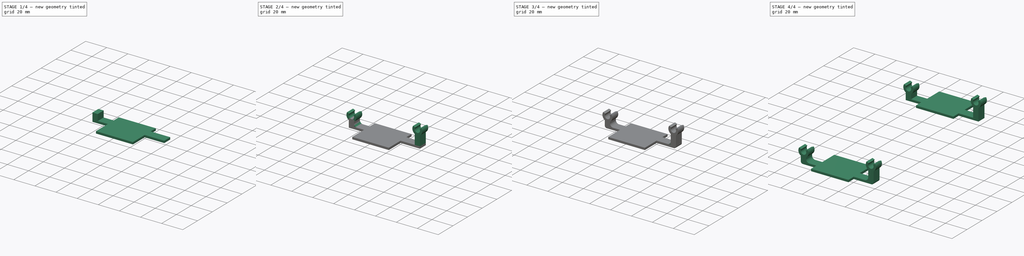
[diagram: build sequence overview — one tinted view per stage of 4, left to right]
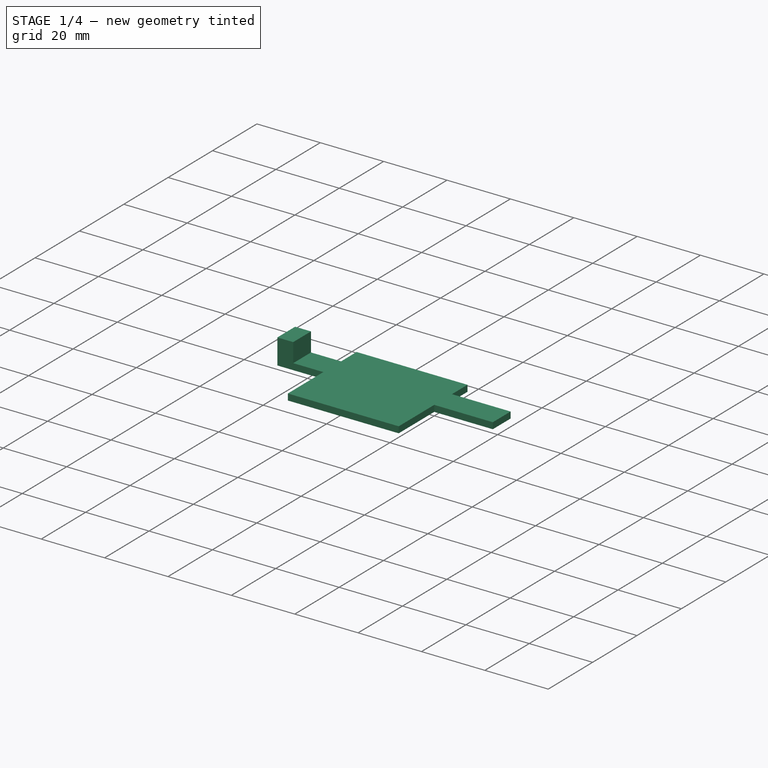
[diagram: stage 1 of 4 — iso view after this stage's code; geometry added in this stage tinted green]
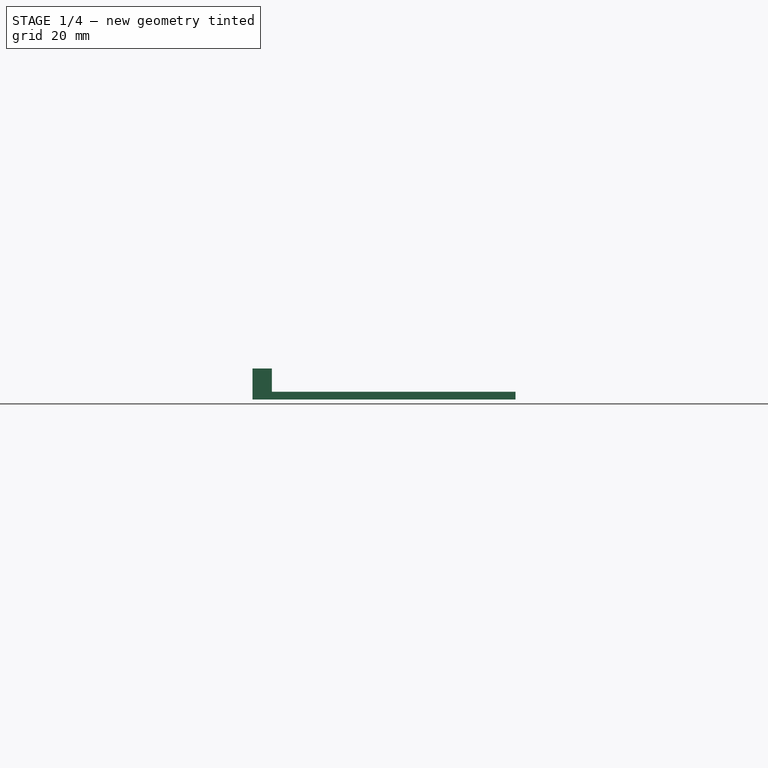
[diagram: stage 1 of 4 — front view after this stage's code; geometry added in this stage tinted green]
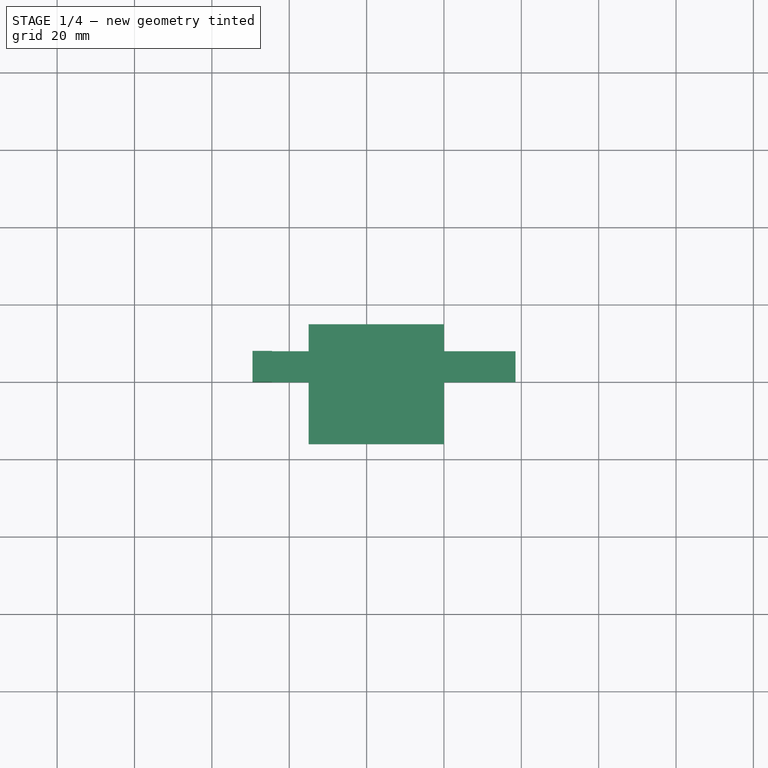
[diagram: stage 1 of 4 — top view after this stage's code; geometry added in this stage tinted green]
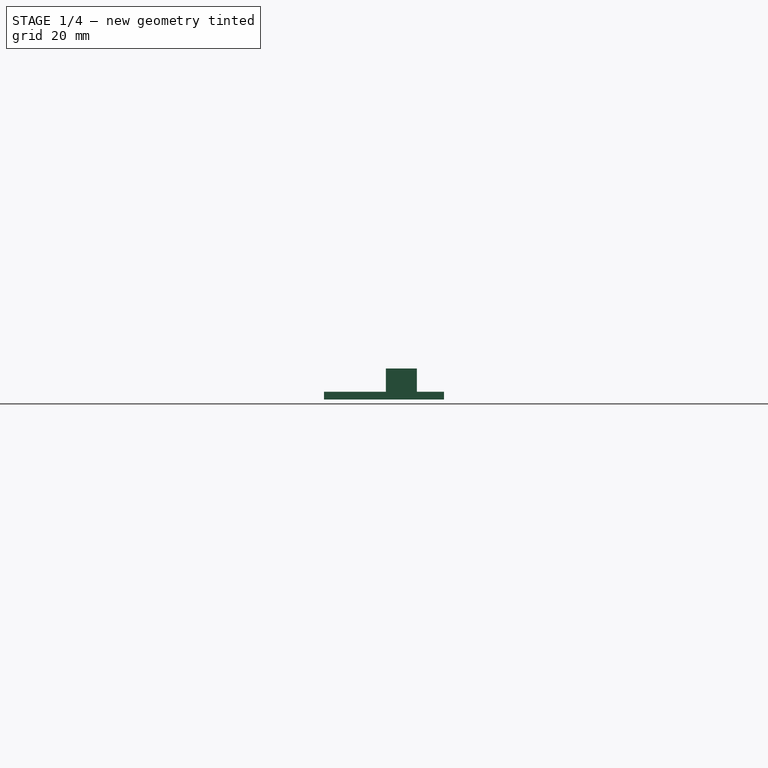
[diagram: stage 1 of 4 — right view after this stage's code; geometry added in this stage tinted green]
FCSTD DOCUMENT  (FreeCAD 0.21R33675 (Git))
Label: copter_left_cover
License: All rights reserved
LicenseURL: http://en.wikipedia.org/wiki/All_rights_reserved
objects: Sketcher::SketchObject×4, PartDesign::Pad×4, Part::Fillet×4, Part::Mirroring×2, PartDesign::Body×1
note: 19 computed .brp shape members not serialized (recipe doc carries the construction recipe); baked Part::Feature solids carry a one-line shape summary decoded from their .brp

FEATURE [Sketcher::SketchObject] Sketch
  FullyConstrained = true
  MapMode = 5
  Support = -> [XY_Plane]
  sketch-geometry (12):
    g0: LineSegment StartX=-49.5 StartY=0 StartZ=0 EndX=-49.5 EndY=8 EndZ=0
    g1: LineSegment StartX=-49.5 StartY=8 StartZ=0 EndX=-35 EndY=8 EndZ=0
    g2: LineSegment StartX=-35 StartY=8 StartZ=0 EndX=-35 EndY=15 EndZ=0
    g3: LineSegment StartX=-35 StartY=15 StartZ=0 EndX=0 EndY=15 EndZ=0
    g4: LineSegment StartX=0 StartY=15 StartZ=0 EndX=0 EndY=8 EndZ=0
    g5: LineSegment StartX=0 StartY=8 StartZ=0 EndX=18.5 EndY=8 EndZ=0
    g6: LineSegment StartX=18.5 StartY=8 StartZ=0 EndX=18.5 EndY=0 EndZ=0
    g7: LineSegment StartX=-49.5 StartY=0 StartZ=0 EndX=-35 EndY=0 EndZ=0
    g8: LineSegment StartX=-35 StartY=0 StartZ=0 EndX=-35 EndY=-16 EndZ=0
    g9: LineSegment StartX=-35 StartY=-16 StartZ=0 EndX=0 EndY=-16 EndZ=0
    g10: LineSegment StartX=0 StartY=-16 StartZ=0 EndX=0 EndY=0 EndZ=0
    g11: LineSegment StartX=0 StartY=0 StartZ=0 EndX=18.5 EndY=0 EndZ=0
  constraints (35):
    c: PointOnObject(g0,g-1)
    c: Vertical(g0)
    c: Coincident(g1,g0)
    c: Horizontal(g1)
    c: Coincident(g2,g1)
    c: Vertical(g2)
    c: Coincident(g3,g2)
    c: PointOnObject(g3,g-2)
    c: Horizontal(g3)
    c: Coincident(g4,g3)
    c: PointOnObject(g4,g-2)
    c: Coincident(g5,g4)
    c: Horizontal(g5)
    c: Coincident(g6,g5)
    c: Vertical(g6)
    c: PointOnObject(g6,g-1)
    c: Coincident(g7,g0)
    c: PointOnObject(g7,g-1)
    c: Coincident(g8,g7)
    c: Vertical(g8)
    c: Coincident(g9,g8)
    c: PointOnObject(g9,g-2)
    c: Horizontal(g9)
    c: Coincident(g10,g9)
    c: Coincident(g10,g-1)
    c: Coincident(g11,g10)
    c: Coincident(g11,g6)
    c: DistanceX(g0,g6) = 68
    c: DistanceY(g8,g8) = 16
    c: Equal(g7,g1)
    c: DistanceX(g7,g7) = 14.5
    c: Equal(g0,g6)
    c: DistanceY(g0,g0) = 8
    c: DistanceY(g4,g4) = 7
    c: DistanceX(g11,g11) = 18.5
FEATURE [PartDesign::Pad] Pad
  Direction = (0,0,1)
  Length = 2
  Length2 = 10
  Profile = -> Sketch
  ReferenceAxis = -> Sketch [N_Axis]
  Type = 0
FEATURE [Sketcher::SketchObject] Sketch001
  ExternalGeometry = -> [Pad]
  FullyConstrained = true
  MapMode = 5
  Placement = pos=(0,0,2) rot=(0,0,1;0rad)
  Support = -> [Pad]
  sketch-geometry (4):
    g0: LineSegment StartX=-49.5 StartY=8 StartZ=0 EndX=-44.5 EndY=8 EndZ=0
    g1: LineSegment StartX=-44.5 StartY=8 StartZ=0 EndX=-44.5 EndY=0 EndZ=0
    g2: LineSegment StartX=-44.5 StartY=0 StartZ=0 EndX=-49.5 EndY=0 EndZ=0
    g3: LineSegment StartX=-49.5 StartY=0 StartZ=0 EndX=-49.5 EndY=8 EndZ=0
  constraints (11):
    c: Coincident(g0,g1)
    c: Coincident(g1,g2)
    c: Coincident(g2,g3)
    c: Coincident(g3,g0)
    c: Horizontal(g0)
    c: Horizontal(g2)
    c: Vertical(g1)
    c: Vertical(g3)
    c: Coincident(g0,g-3)
    c: PointOnObject(g1,g-1)
    c: DistanceX(g0,g0) = 5
FEATURE [PartDesign::Pad] Pad001
  BaseFeature = -> Pad
  Direction = (0,0,1)
  Length = 6
  Length2 = 10
  Profile = -> Sketch001
  ReferenceAxis = -> Sketch001 [N_Axis]
  Type = 0
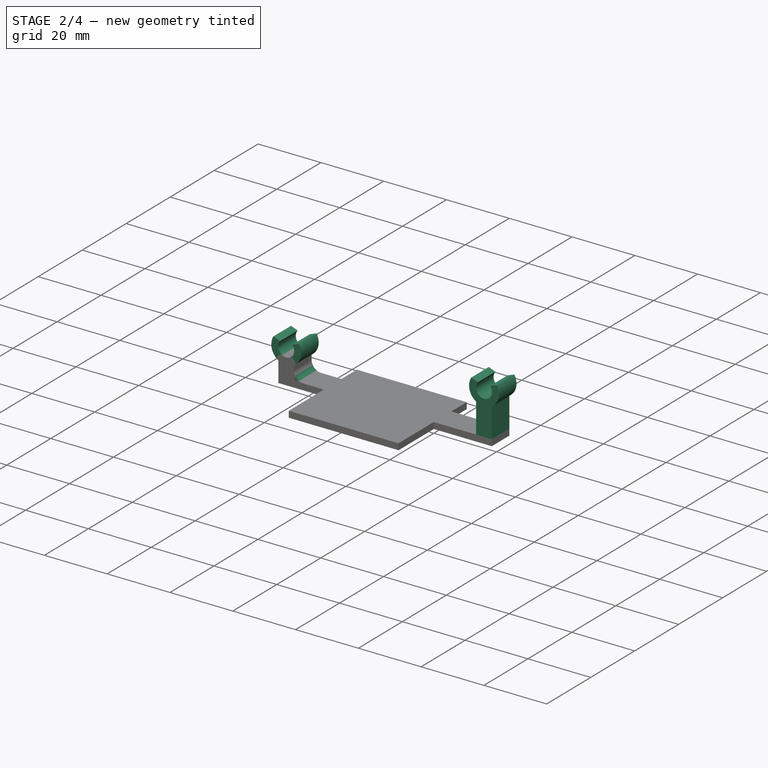
[diagram: stage 2 of 4 — iso view after this stage's code; geometry added in this stage tinted green]
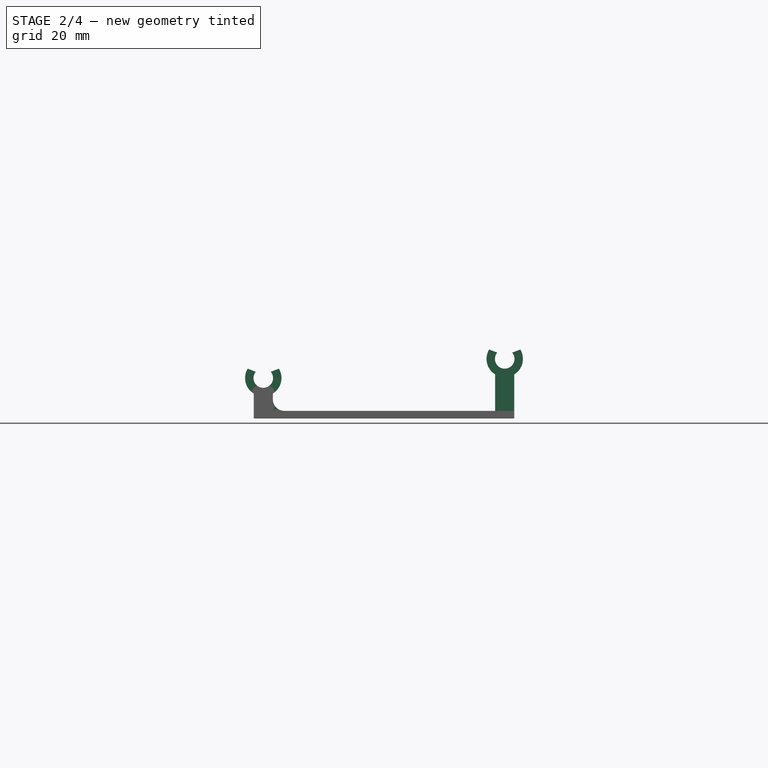
[diagram: stage 2 of 4 — front view after this stage's code; geometry added in this stage tinted green]
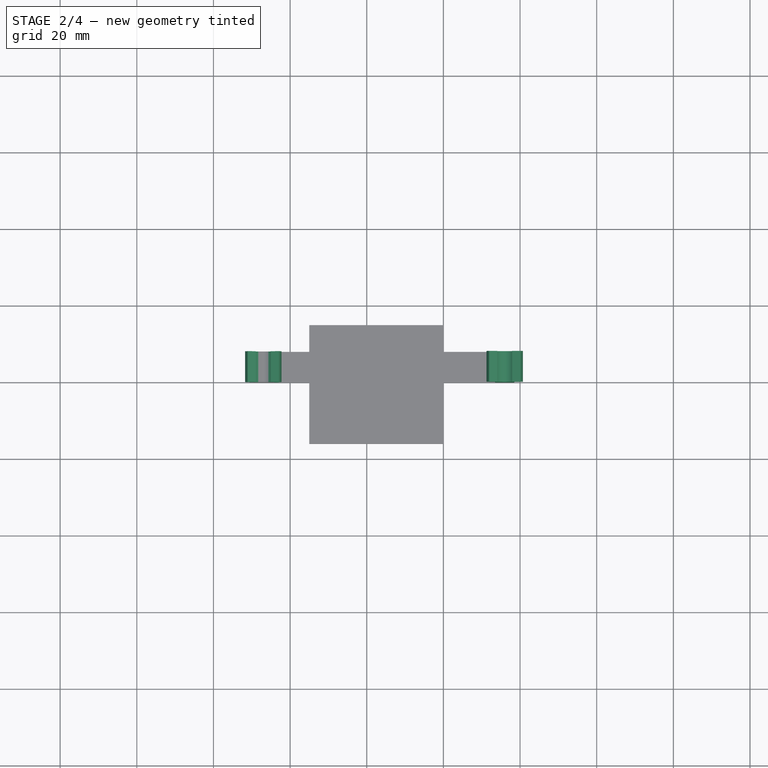
[diagram: stage 2 of 4 — top view after this stage's code; geometry added in this stage tinted green]
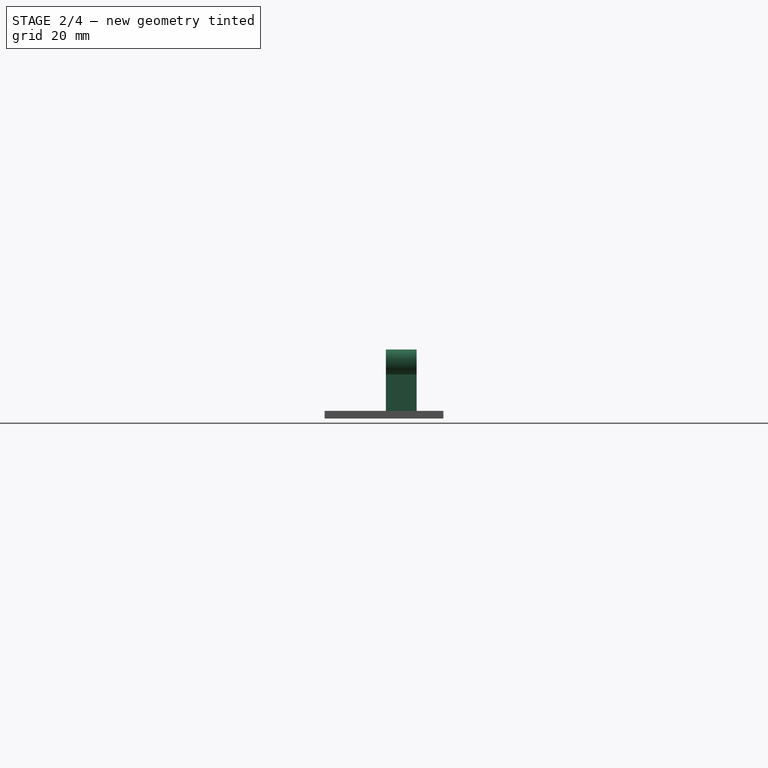
[diagram: stage 2 of 4 — right view after this stage's code; geometry added in this stage tinted green]
FEATURE [Sketcher::SketchObject] Sketch002
  ExternalGeometry = -> [Pad001]
  FullyConstrained = true
  MapMode = 5
  Placement = pos=(0,0,2) rot=(0,0,1;0rad)
  Support = -> [Pad001]
  sketch-geometry (4):
    g0: LineSegment StartX=18.5 StartY=8 StartZ=0 EndX=13.5 EndY=8 EndZ=0
    g1: LineSegment StartX=13.5 StartY=8 StartZ=0 EndX=13.5 EndY=0 EndZ=0
    g2: LineSegment StartX=13.5 StartY=0 StartZ=0 EndX=18.5 EndY=0 EndZ=0
    g3: LineSegment StartX=18.5 StartY=0 StartZ=0 EndX=18.5 EndY=8 EndZ=0
  constraints (11):
    c: Coincident(g0,g1)
    c: Coincident(g1,g2)
    c: Coincident(g2,g3)
    c: Coincident(g3,g0)
    c: Horizontal(g0)
    c: Horizontal(g2)
    c: Vertical(g1)
    c: Vertical(g3)
    c: Coincident(g0,g-3)
    c: PointOnObject(g1,g-1)
    c: DistanceX(g0,g0) = 5
FEATURE [PartDesign::Pad] Pad002
  BaseFeature = -> Pad001
  Direction = (0,0,1)
  Length = 11
  Length2 = 10
  Profile = -> Sketch002
  ReferenceAxis = -> Sketch002 [N_Axis]
  Type = 0
FEATURE [Sketcher::SketchObject] Sketch003
  ExternalGeometry = -> [Pad002]
  FullyConstrained = true
  MapMode = 5
  Placement = pos=(0,0,0) rot=(1,0,0;1.5708rad)
  Support = -> [Pad002]
  sketch-geometry (8):
    g0: ArcOfCircle CenterX=-47 CenterY=10.55 CenterZ=0 NormalX=0 NormalY=0 NormalZ=1 AngleXU=0 Radius=2.55 StartAngle=2.43787 EndAngle=6.98691
    g1: ArcOfCircle CenterX=-47 CenterY=10.55 CenterZ=0 NormalX=0 NormalY=0 NormalZ=1 AngleXU=0 Radius=4.75 StartAngle=2.59966 EndAngle=6.82511
    g2: LineSegment StartX=-48.9442 StartY=12.2 StartZ=0 EndX=-51.0694 EndY=13 EndZ=0
    g3: LineSegment StartX=-45.0558 StartY=12.2 StartZ=0 EndX=-42.9306 EndY=13 EndZ=0
    g4: ArcOfCircle CenterX=16 CenterY=15.55 CenterZ=0 NormalX=0 NormalY=0 NormalZ=1 AngleXU=0 Radius=2.55 StartAngle=2.43787 EndAngle=6.98691
    g5: ArcOfCircle CenterX=16 CenterY=15.55 CenterZ=0 NormalX=0 NormalY=0 NormalZ=1 AngleXU=0 Radius=4.75 StartAngle=2.59966 EndAngle=6.82511
    g6: LineSegment StartX=14.0558 StartY=17.2 StartZ=0 EndX=11.9306 EndY=18 EndZ=0
    g7: LineSegment StartX=17.9442 StartY=17.2 StartZ=0 EndX=20.0694 EndY=18 EndZ=0
  constraints (26):
    c: Coincident(g1,g0)
    c: Tangent(g0,g-3)
    c: Horizontal(g0,g0)
    c: DistanceX(g0,g-3) = 2.5
    c: Diameter(g0) = 5.1
    c: Horizontal(g1,g1)
    c: Diameter(g1) = 9.5
    c: DistanceY(g-3,g0) = 4.2
    c: DistanceY(g-3,g1) = 5
    c: Coincident(g2,g0)
    c: Coincident(g2,g1)
    c: Coincident(g3,g0)
    c: Coincident(g3,g1)
    c: Coincident(g5,g4)
    c: Tangent(g4,g-4)
    c: Diameter(g4) = 5.1
    c: Diameter(g5) = 9.5
    c: DistanceX(g4,g-4) = 2.5
    c: Horizontal(g4,g4)
    c: Horizontal(g5,g5)
    c: DistanceY(g-4,g4) = 4.2
    c: DistanceY(g-4,g5) = 5
    c: Coincident(g6,g4)
    c: Coincident(g6,g5)
    c: Coincident(g7,g4)
    c: Coincident(g7,g5)
FEATURE [PartDesign::Pad] Pad003
  BaseFeature = -> Pad002
  Direction = (0,-1,2e-16)
  Length = 8
  Length2 = 10
  Profile = -> Sketch003
  ReferenceAxis = -> Sketch003 [N_Axis]
  Reversed = true
  Type = 0
FEATURE [Part::Fillet] Fillet
  Base = -> Pad003
  Edges = 1 edges r=3: [Edge37]
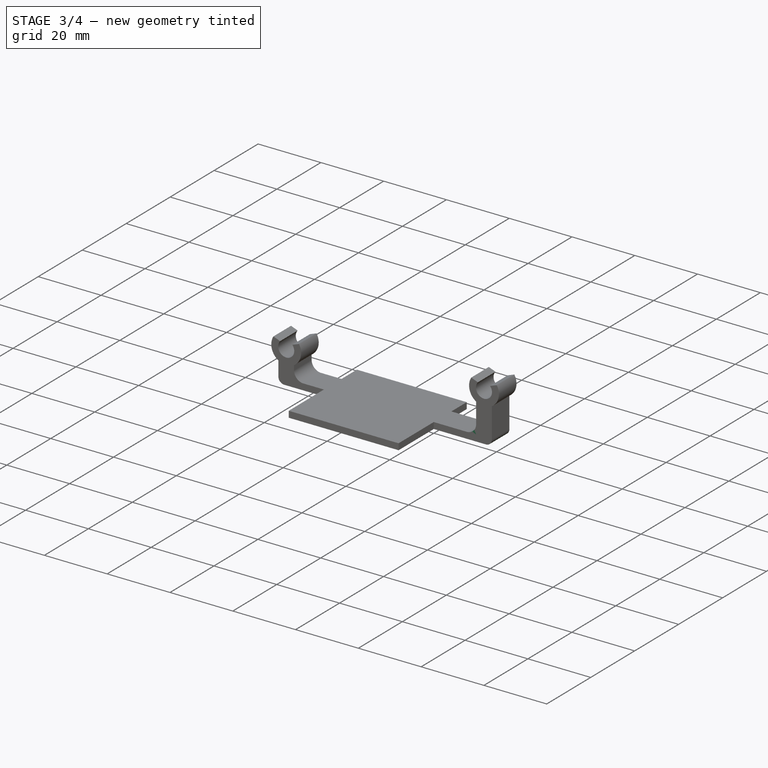
[diagram: stage 3 of 4 — iso view after this stage's code; geometry added in this stage tinted green]
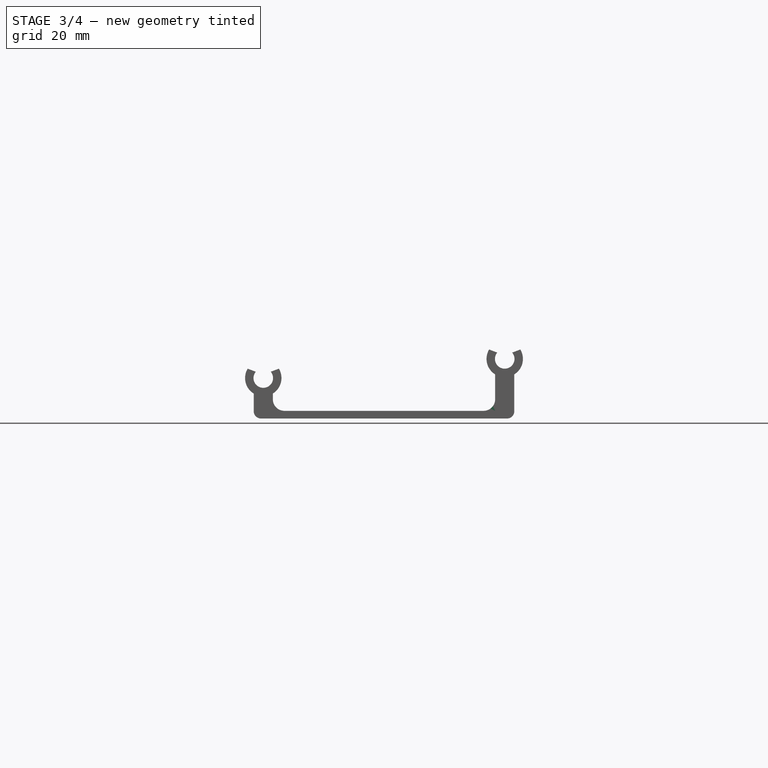
[diagram: stage 3 of 4 — front view after this stage's code; geometry added in this stage tinted green]
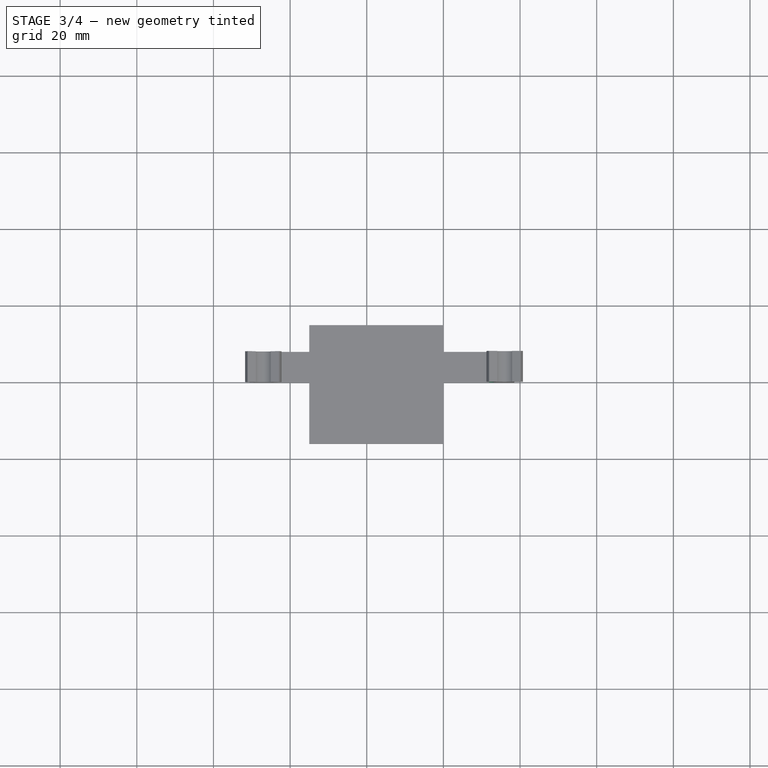
[diagram: stage 3 of 4 — top view after this stage's code; geometry added in this stage tinted green]
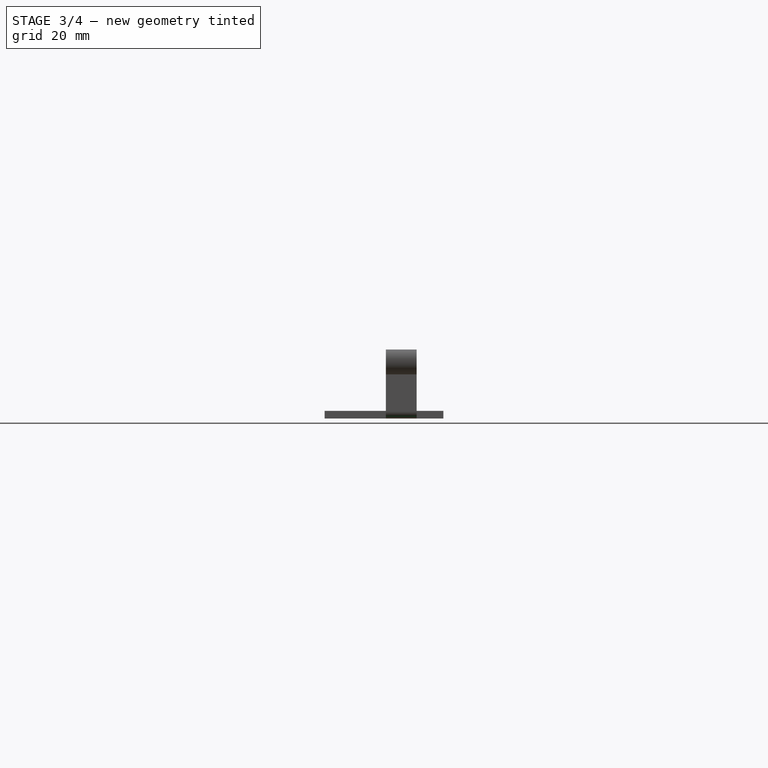
[diagram: stage 3 of 4 — right view after this stage's code; geometry added in this stage tinted green]
FEATURE [Part::Fillet] Fillet001
  Base = -> Fillet
  Edges = 1 edges r=3: [Edge13]
FEATURE [Part::Fillet] Fillet002
  Base = -> Fillet001
  Edges = 1 edges r=1.9: [Edge53]
FEATURE [Part::Fillet] Fillet003
  Base = -> Fillet002
  Edges = 1 edges r=1.9: [Edge22]
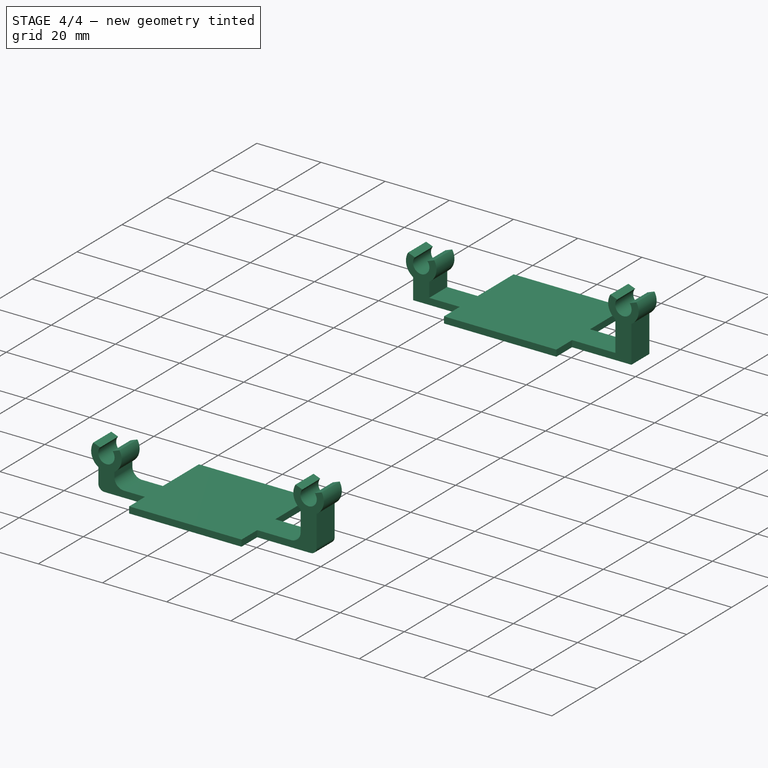
[diagram: stage 4 of 4 — iso view after this stage's code; geometry added in this stage tinted green]
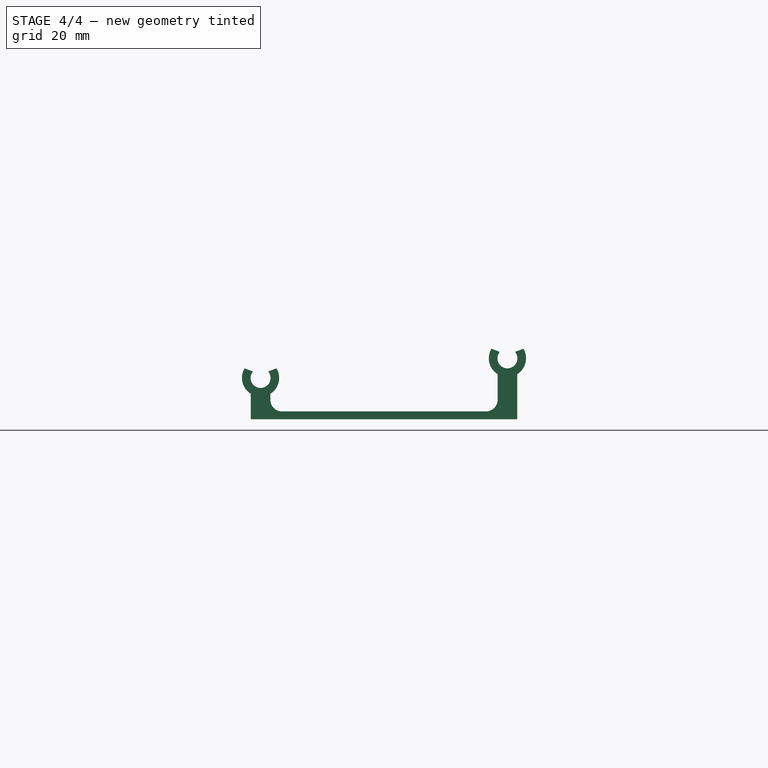
[diagram: stage 4 of 4 — front view after this stage's code; geometry added in this stage tinted green]
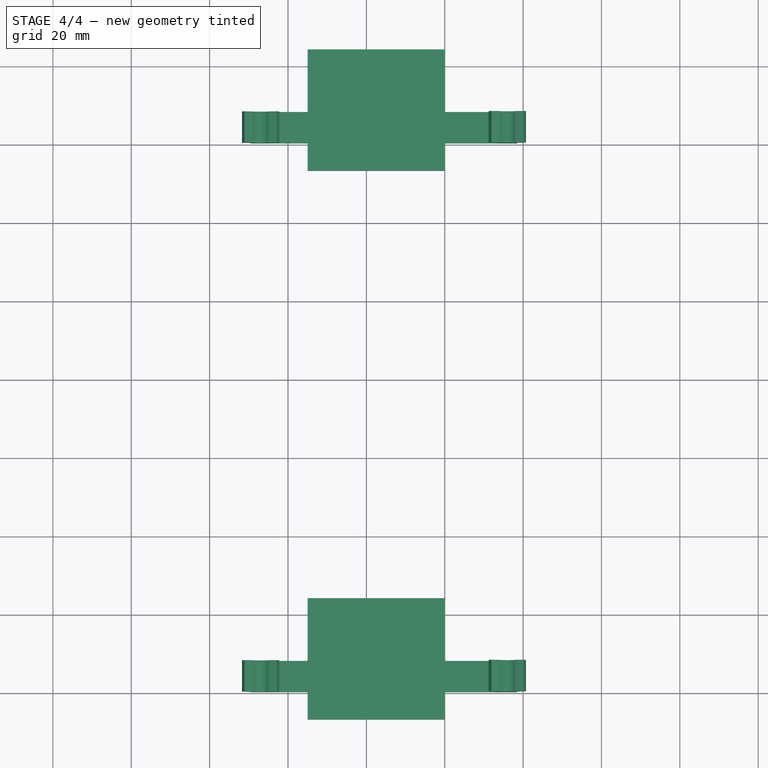
[diagram: stage 4 of 4 — top view after this stage's code; geometry added in this stage tinted green]
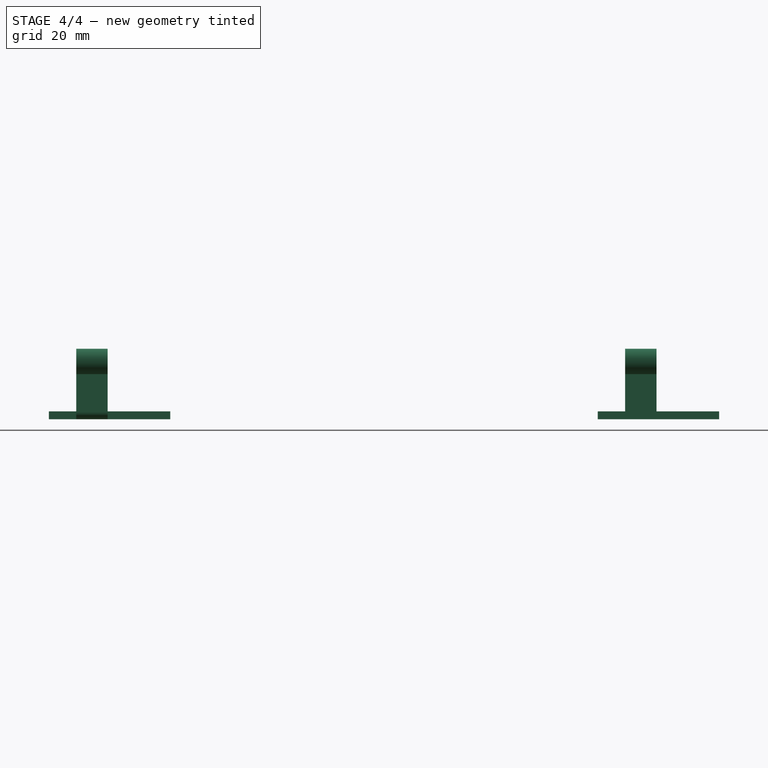
[diagram: stage 4 of 4 — right view after this stage's code; geometry added in this stage tinted green]
FEATURE [PartDesign::Body] Body
  Group = -> [Sketch,Pad,Sketch001,Pad001,Sketch002,Pad002,Sketch003,Pad003]
  Origin = -> Origin
  Tip = -> Pad003
FEATURE [Part::Mirroring] Mirror  label="Body (mirrored)"
  Base = (-15.5,24.1834,9)
  Normal = (0,-1,-1.19209e-07)
  Source = -> Body
FEATURE [Part::Mirroring] Mirror001  label="Fillet003 (mirrored)"
  Base = (-73.2108,-45.8555,0)
  Normal = (0,-1,0)
  Source = -> Fillet003
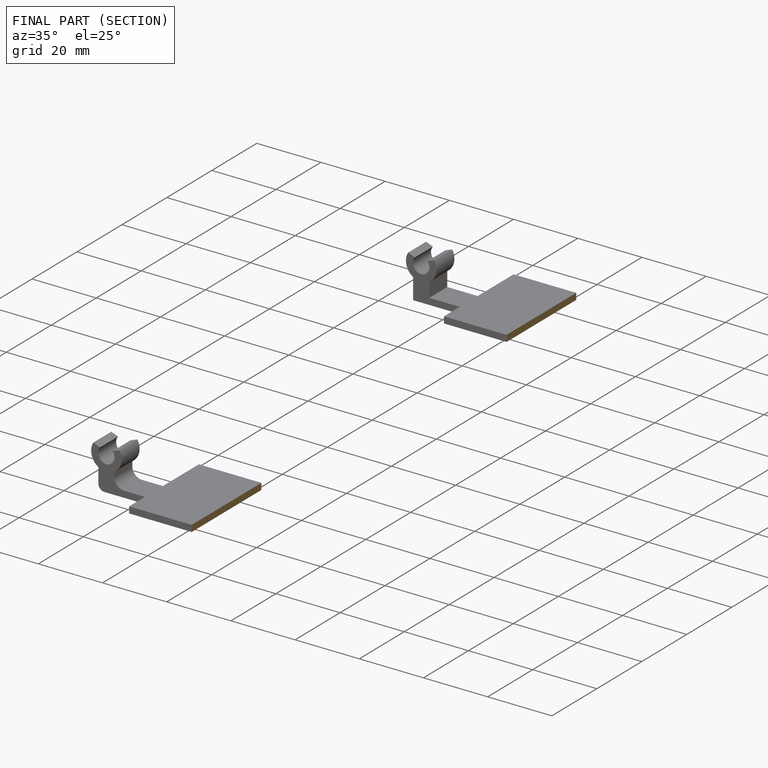
[diagram: finished part — half-section view (interior)]
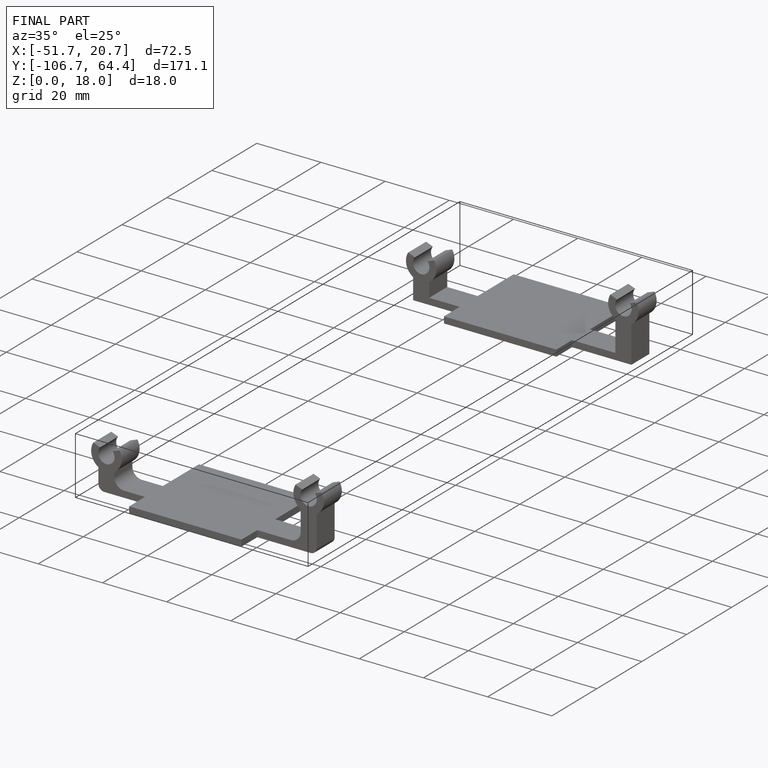
[diagram: finished part — iso view with bounding-box wireframe]
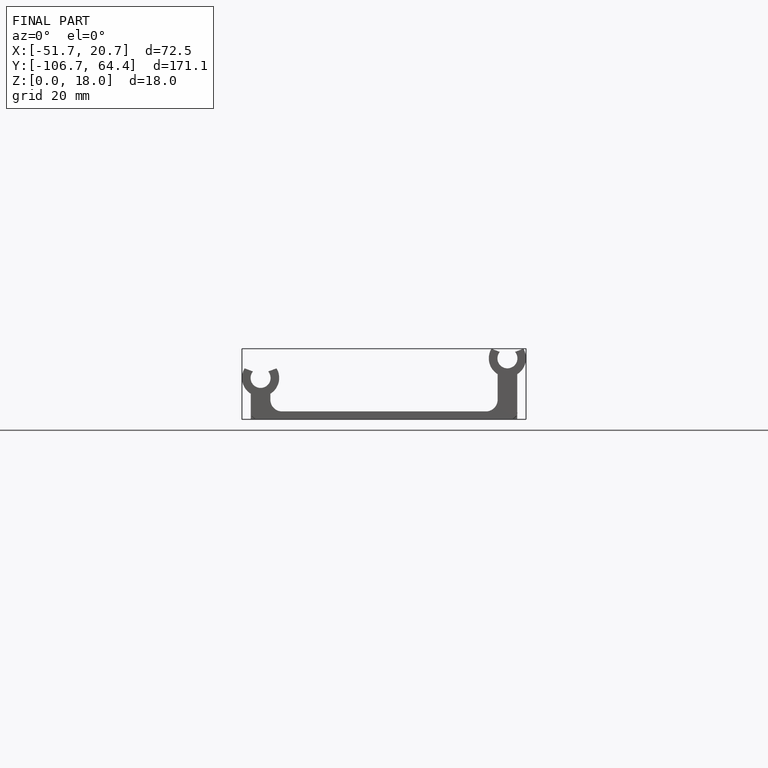
[diagram: finished part — front view with bounding-box wireframe]
